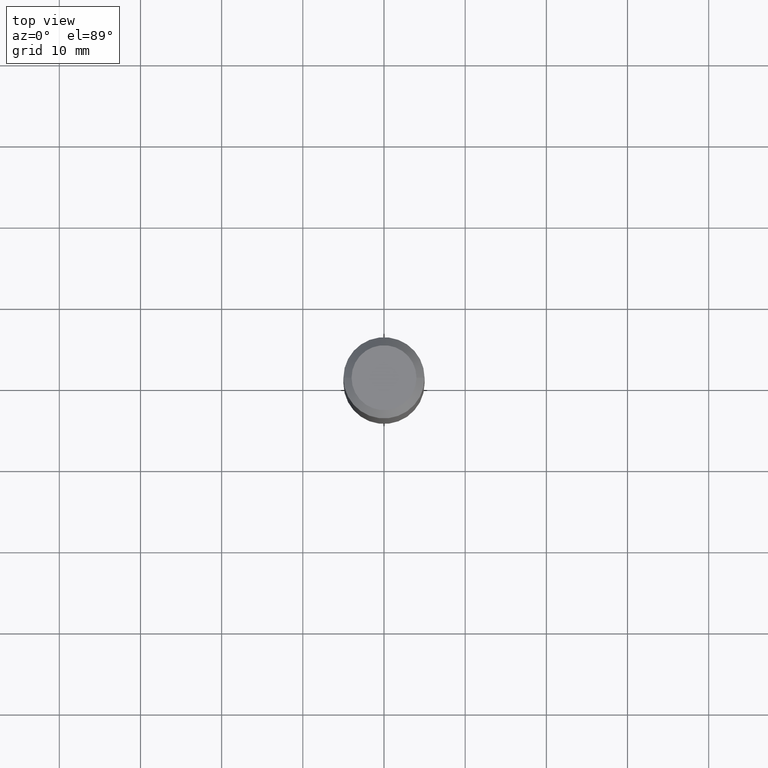
[diagram: clean part render]
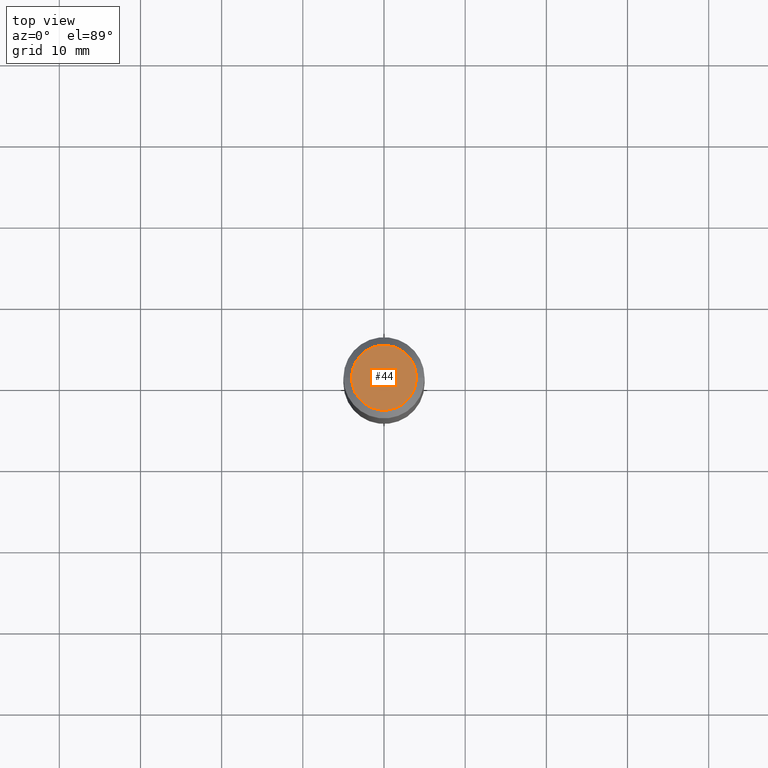
[diagram: same view with one face highlighted and labeled with its STEP entity id]
A machine part, top view. The second image highlights one B-rep face of the part: STEP entity #44.
In plain terms, the highlighted planar face has unit normal (0, -0, -1).
Its self-contained STEP definition (entity closure, byte-faithful):
#11 = PLANE ( 'NONE',  #288 ) ;
#44 = ADVANCED_FACE ( 'NONE', ( #353 ), #11, .F. ) ;
#58 = DIRECTION ( 'NONE',  ( -2.445468806185136597E-29, 3.491481338843145583E-15, 1.000000000000000000 ) ) ;
#72 = AXIS2_PLACEMENT_3D ( 'NONE', #78, #379, #188 ) ;
#78 = CARTESIAN_POINT ( 'NONE',  ( -9.427742298522567634E-47, 1.346031739168368355E-32, 3.855188123715870730E-18 ) ) ;
#134 = CIRCLE ( 'NONE', #195, 0.1574800000000000089 ) ;
#172 = ORIENTED_EDGE ( 'NONE', *, *, #222, .T. ) ;
#178 = DIRECTION ( 'NONE',  ( 2.438088387897960049E-29, -3.491481338843145188E-15, -1.000000000000000000 ) ) ;
#188 = DIRECTION ( 'NONE',  ( 1.000000000000000000, -6.982962677686265922E-15, 4.876223630392693006E-29 ) ) ;
#194 = ORIENTED_EDGE ( 'NONE', *, *, #398, .T. ) ;
#195 = AXIS2_PLACEMENT_3D ( 'NONE', #386, #58, #201 ) ;
#201 = DIRECTION ( 'NONE',  ( 1.000000000000000000, -6.982962677686265922E-15, 4.876223630392693006E-29 ) ) ;
#219 = CARTESIAN_POINT ( 'NONE',  ( -4.713871149261283817E-47, 6.730158695841841775E-33, 1.927594061857935365E-18 ) ) ;
#221 = VERTEX_POINT ( 'NONE', #453 ) ;
#222 = EDGE_CURVE ( 'NONE', #390, #221, #435, .T. ) ;
#239 = CARTESIAN_POINT ( 'NONE',  ( 0.1574800000000000089, -1.284169937930321386E-15, 3.855188123724205385E-18 ) ) ;
#288 = AXIS2_PLACEMENT_3D ( 'NONE', #219, #178, #367 ) ;
#311 = EDGE_LOOP ( 'NONE', ( #194, #172 ) ) ;
#353 = FACE_OUTER_BOUND ( 'NONE', #311, .T. ) ;
#367 = DIRECTION ( 'NONE',  ( -1.000000000000000000, 6.982962677686265922E-15, -4.876176775795935793E-29 ) ) ;
#379 = DIRECTION ( 'NONE',  ( -2.445468806185136597E-29, 3.491481338843145583E-15, 1.000000000000000000 ) ) ;
#386 = CARTESIAN_POINT ( 'NONE',  ( -9.427742298522567634E-47, 1.346031739168368355E-32, 3.855188123715870730E-18 ) ) ;
#390 = VERTEX_POINT ( 'NONE', #239 ) ;
#398 = EDGE_CURVE ( 'NONE', #221, #390, #134, .T. ) ;
#435 = CIRCLE ( 'NONE', #72, 0.1574800000000000089 ) ;
#453 = CARTESIAN_POINT ( 'NONE',  ( -0.1574800000000000089, 1.168406772637159815E-15, 3.855188123707939751E-18 ) ) ;